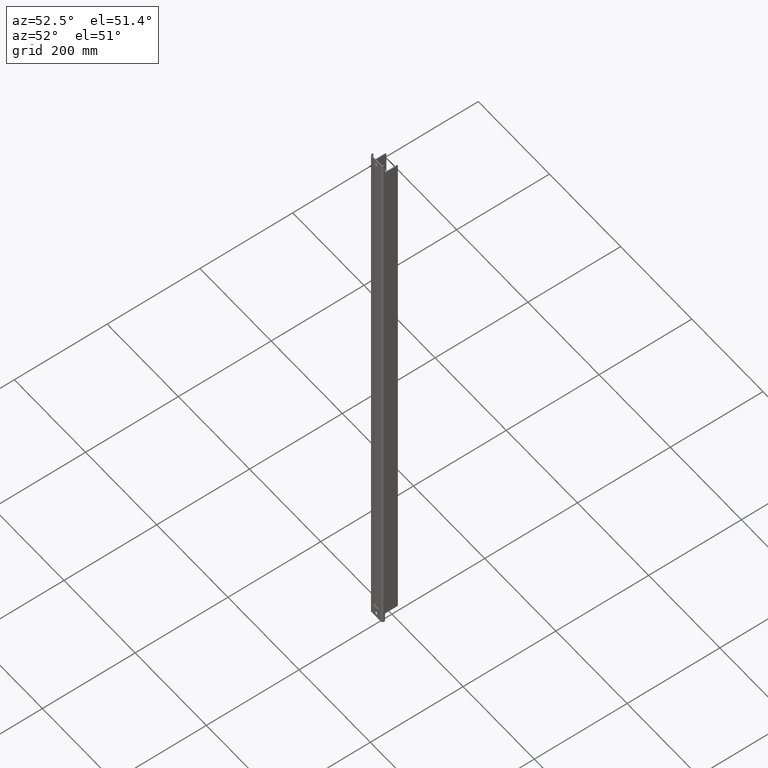
[diagram: clean part render]
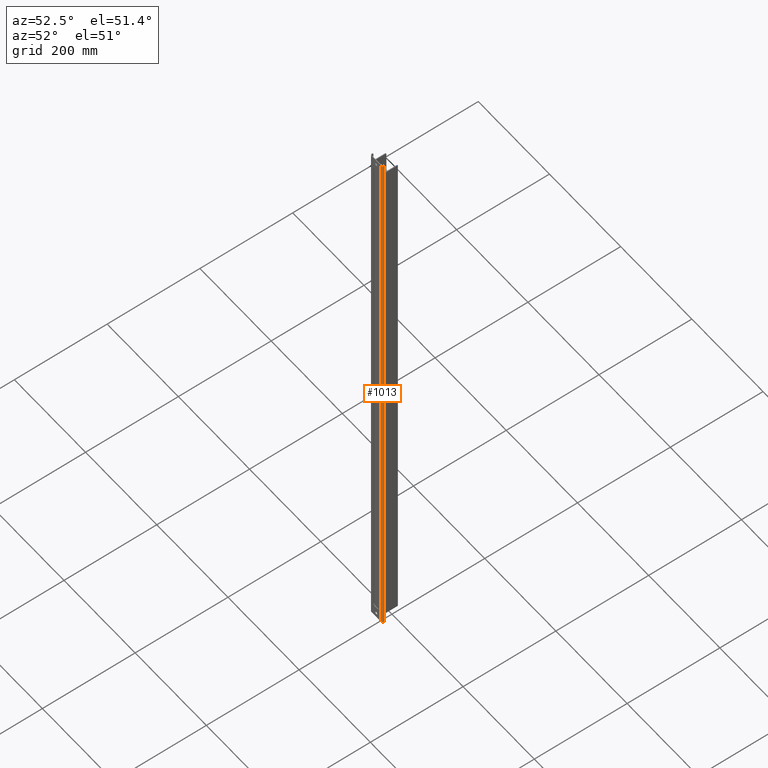
[diagram: same view with one face highlighted and labeled with its STEP entity id]
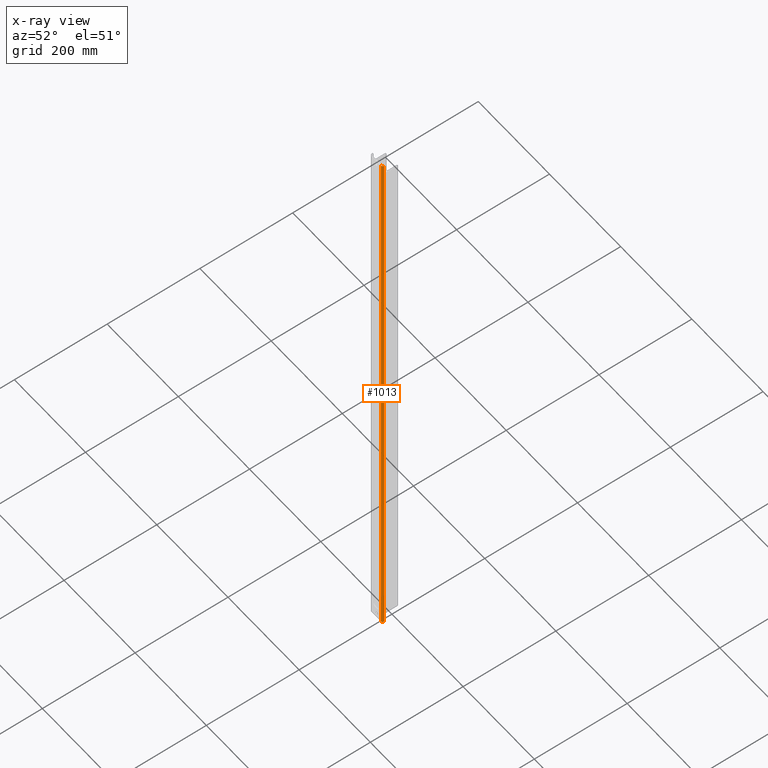
[diagram: x-ray of the same camera — body ghosted, the highlighted face saturated]
A machine part, auxiliary view. The second image highlights one B-rep face of the part: STEP entity #1013.
The next image is the same camera in x-ray: the body ghosted, the highlighted face saturated — about 0% of this face is hidden behind the body in this view.
In plain terms, the highlighted cylindrical surface (edge-blend (fillet) strip) has radius 4 mm, axis along (0, 0, -1).
Its self-contained STEP definition (entity closure, byte-faithful):
#33=LINE('',#1535,#121);
#90=LINE('',#1720,#178);
#121=VECTOR('',#1213,1000.);
#178=VECTOR('',#1410,1000.);
#215=CYLINDRICAL_SURFACE('',#1131,3.99999999999999);
#428=ORIENTED_EDGE('',*,*,#630,.T.);
#429=ORIENTED_EDGE('',*,*,#539,.T.);
#430=ORIENTED_EDGE('',*,*,#631,.F.);
#431=ORIENTED_EDGE('',*,*,#632,.F.);
#539=EDGE_CURVE('',#684,#682,#33,.T.);
#630=EDGE_CURVE('',#740,#684,#800,.T.);
#631=EDGE_CURVE('',#741,#682,#801,.T.);
#632=EDGE_CURVE('',#740,#741,#90,.T.);
#682=VERTEX_POINT('',#1533);
#684=VERTEX_POINT('',#1536);
#740=VERTEX_POINT('',#1717);
#741=VERTEX_POINT('',#1719);
#800=CIRCLE('',#1132,3.99999999999999);
#801=CIRCLE('',#1133,3.99999999999999);
#859=EDGE_LOOP('',(#428,#429,#430,#431));
#927=FACE_BOUND('',#859,.T.);
#1013=ADVANCED_FACE('',(#927),#215,.T.);
#1131=AXIS2_PLACEMENT_3D('',#1715,#1404,#1405);
#1132=AXIS2_PLACEMENT_3D('',#1716,#1406,#1407);
#1133=AXIS2_PLACEMENT_3D('',#1718,#1408,#1409);
#1213=DIRECTION('',(-3.43749899352818E-17,1.66533453693773E-16,-1.));
#1404=DIRECTION('',(8.93686180177302E-17,1.66533453693773E-16,-1.));
#1405=DIRECTION('',(4.06163832661068E-16,1.,1.66533453693773E-16));
#1406=DIRECTION('',(8.93686180177302E-17,1.66533453693773E-16,-1.));
#1407=DIRECTION('',(4.06163832661068E-16,1.,1.66533453693773E-16));
#1408=DIRECTION('',(8.93686180177302E-17,1.66533453693773E-16,-1.));
#1409=DIRECTION('',(4.06163832661068E-16,1.,1.66533453693773E-16));
#1410=DIRECTION('',(8.93686180177302E-17,1.31838984174237E-16,-1.));
#1533=CARTESIAN_POINT('',(13.0000000000001,-34.0130367319018,-625.));
#1535=CARTESIAN_POINT('',(13.0000000000001,-34.0130367319026,375.));
#1536=CARTESIAN_POINT('',(13.,-34.0130367319026,625.));
#1715=CARTESIAN_POINT('',(13.0000000000001,-30.0130367319025,-375.));
#1716=CARTESIAN_POINT('',(13.,-30.0130367319026,625.));
#1717=CARTESIAN_POINT('',(17.,-30.0130367319026,625.));
#1718=CARTESIAN_POINT('',(13.0000000000001,-30.0130367319018,-625.));
#1719=CARTESIAN_POINT('',(17.0000000000001,-30.0130367319021,-625.));
#1720=CARTESIAN_POINT('',(17.,-30.0130367319026,-1.92994200509913E-15));